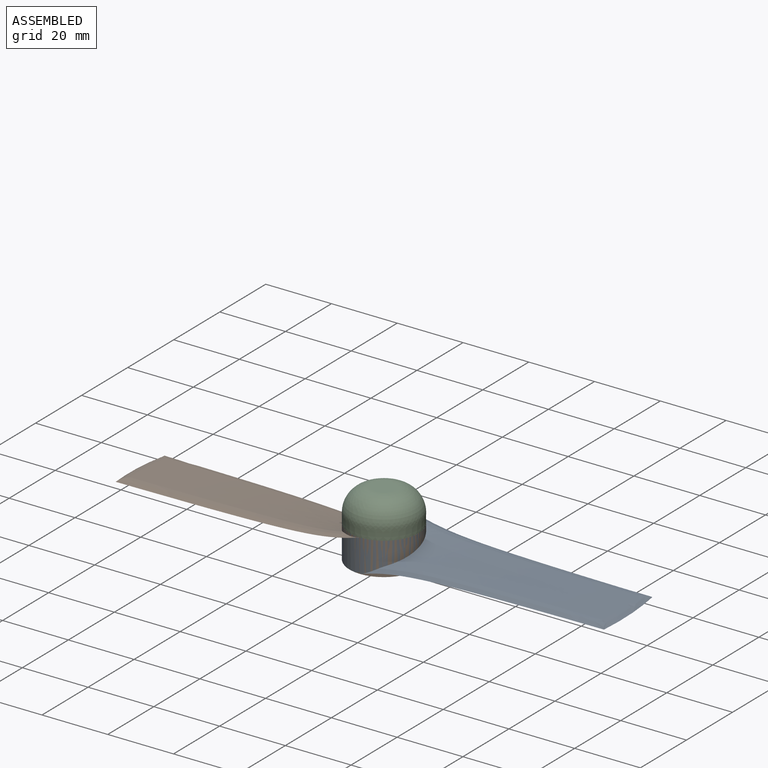
[diagram: assembled view]
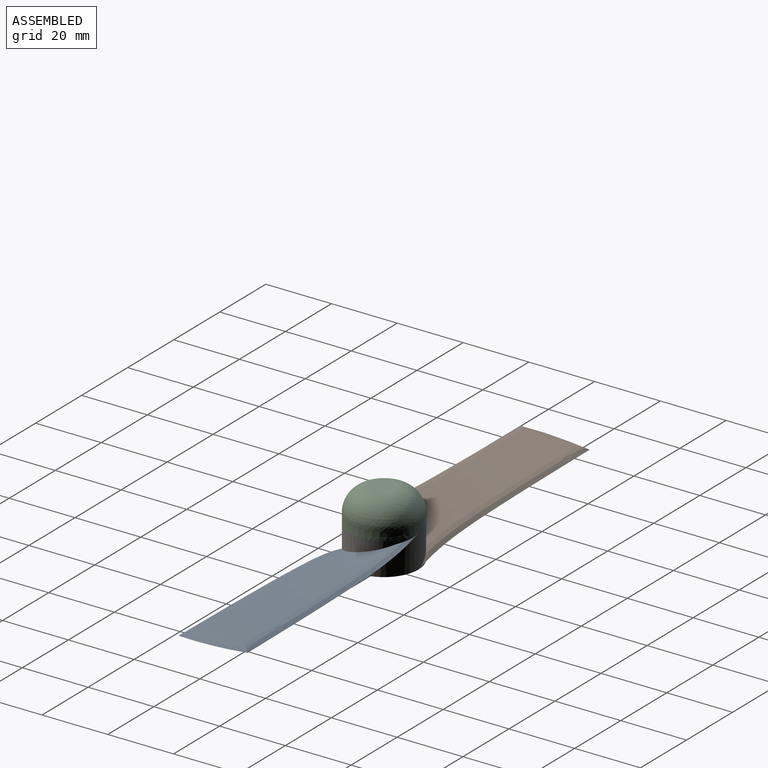
[diagram: assembled view, second angle]
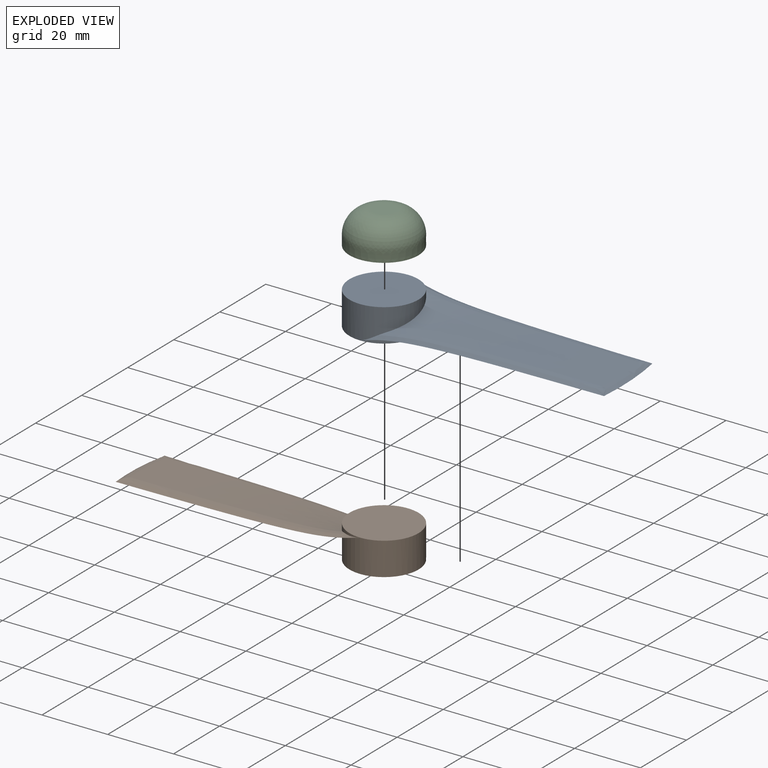
[diagram: exploded view]
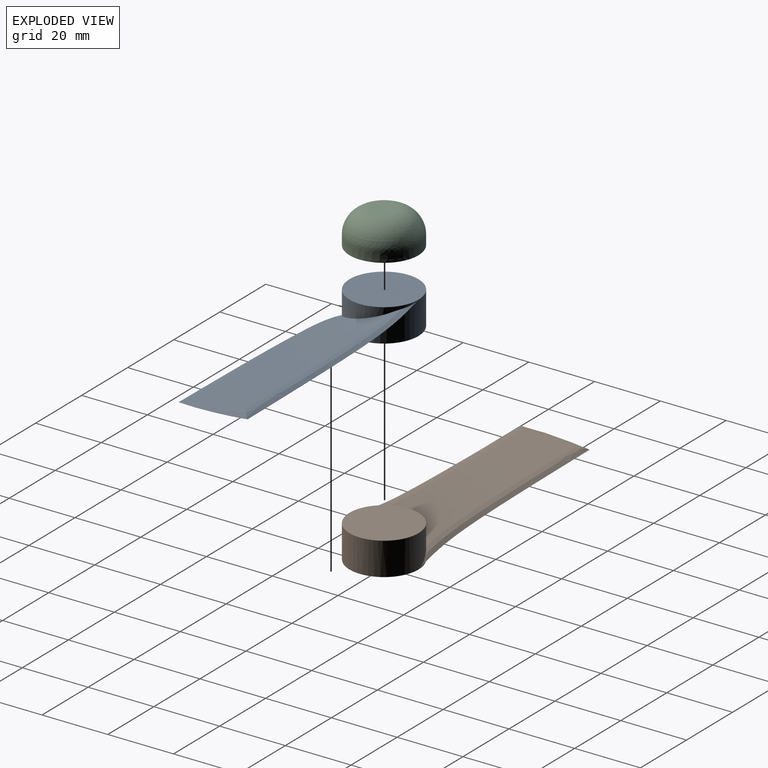
[diagram: exploded view, second angle]
ASSEMBLY  parts=3 mates=2
PART A: 8 faces, bbox 97.7x150x11.3 mm
  f0: bspline ~121.35x72.69mm, area 995.6mm2, adj f1,f5,f6,f7
  f1: cylinder r=10.5mm len=21mm, axis (0,0,1), area 633.4mm2, adj f0,f2,f3,f4,f5,f7
  f2: bspline ~150x78.86mm, area 1404.7mm2, adj f1,f5,f6,f7
  f3: plane 21x21mm, normal (0,0,-1), area 346.4mm2, adj f1
  f4: plane 21.02x21.02mm, normal (0,0,1), area 346.5mm2, adj f1
  f5: bspline ~88.65x5.98mm, area 200.4mm2, adj f0,f1,f2,f6
  f6: bspline ~31.3x4.42mm, area 53.2mm2, adj f0,f2,f5,f7
  f7: bspline ~82.97x5.63mm, area 201.7mm2, adj f0,f1,f2,f6
PART B: 8 faces, bbox 97.7x150x11.3 mm
  f0: bspline ~121.35x72.69mm, area 995.6mm2, adj f1,f5,f6,f7
  f1: cylinder r=10.5mm len=21mm, axis (0,0,1), area 633.4mm2, adj f0,f2,f3,f4,f5,f7
  f2: bspline ~150x78.86mm, area 1404.7mm2, adj f1,f5,f6,f7
  f3: plane 21x21mm, normal (0,0,-1), area 346.4mm2, adj f1
  f4: plane 21.02x21.02mm, normal (0,0,1), area 346.5mm2, adj f1
  f5: bspline ~88.65x5.98mm, area 200.4mm2, adj f0,f1,f2,f6
  f6: bspline ~31.3x4.42mm, area 53.2mm2, adj f0,f2,f5,f7
  f7: bspline ~82.97x5.63mm, area 201.7mm2, adj f0,f1,f2,f6
PART C: 6 faces, bbox 21.1x21.1x10 mm
  f0: extruded ~21x20.96mm, area 187.6mm2, adj f1,f3,f5
  f1: extruded ~3.24x3mm, area 9.9mm2, adj f0,f3,f4
  f2: plane 7.01x7.01mm, normal (0,0,1), area 38.5mm2, adj f4,f5
  f3: plane 21.13x21.07mm, normal (0,0,-1), area 346.5mm2, adj f0,f1
  f4: bspline ~7.35x7mm, area 27.4mm2, adj f1,f2,f5
  f5: bspline ~21.02x21.01mm, area 521.6mm2, adj f0,f2,f4
PLACE A at identity
PLACE B at identity
PLACE C at identity
MATE fastened B.f1 <-> C.f3  axis (0,0,1) through (0,0,0)mm
MATE fastened A.f1 <-> B.f1  axis (0,0,1) through (0,0,0)mm
